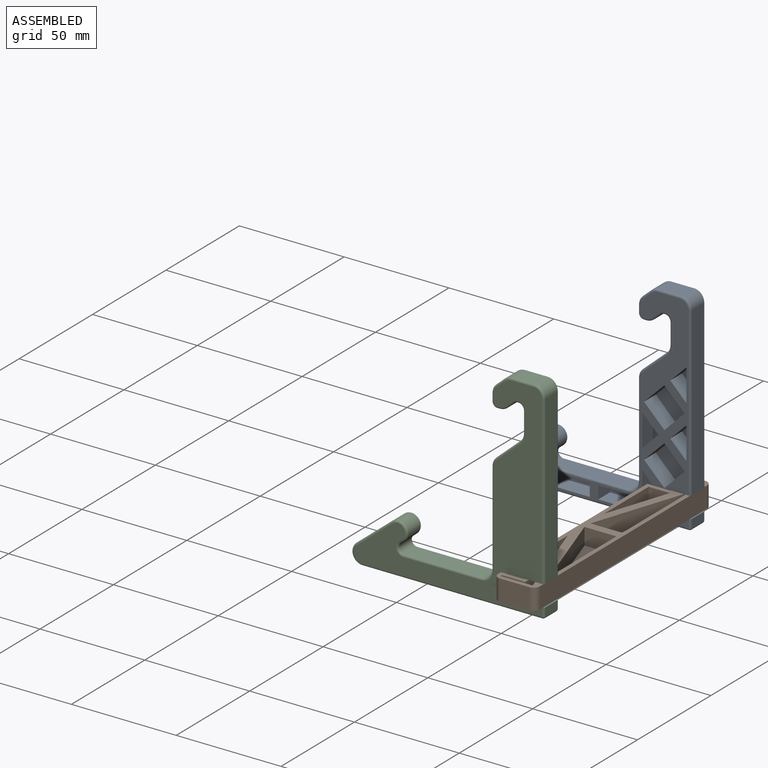
[diagram: assembled view]
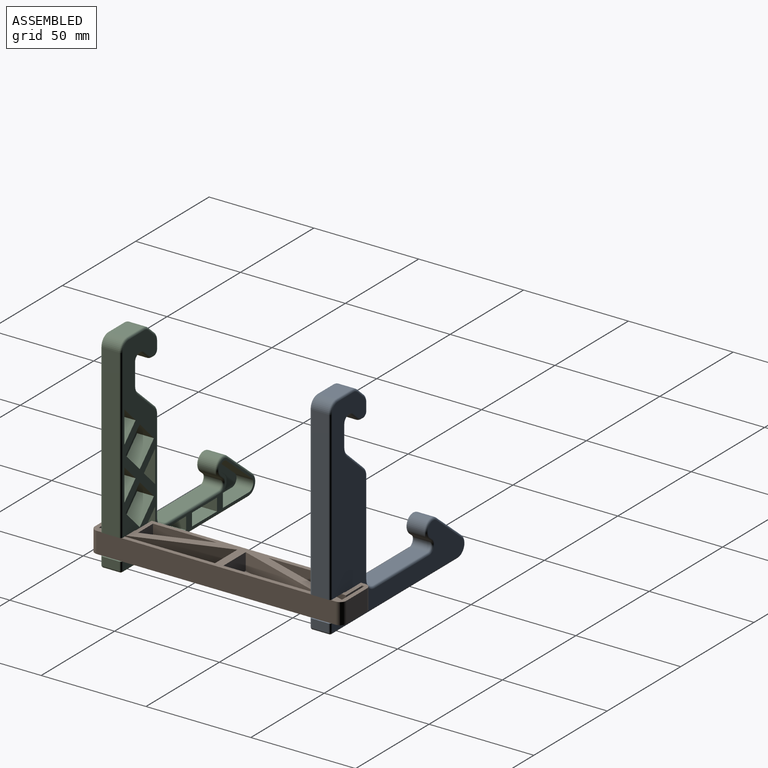
[diagram: assembled view, second angle]
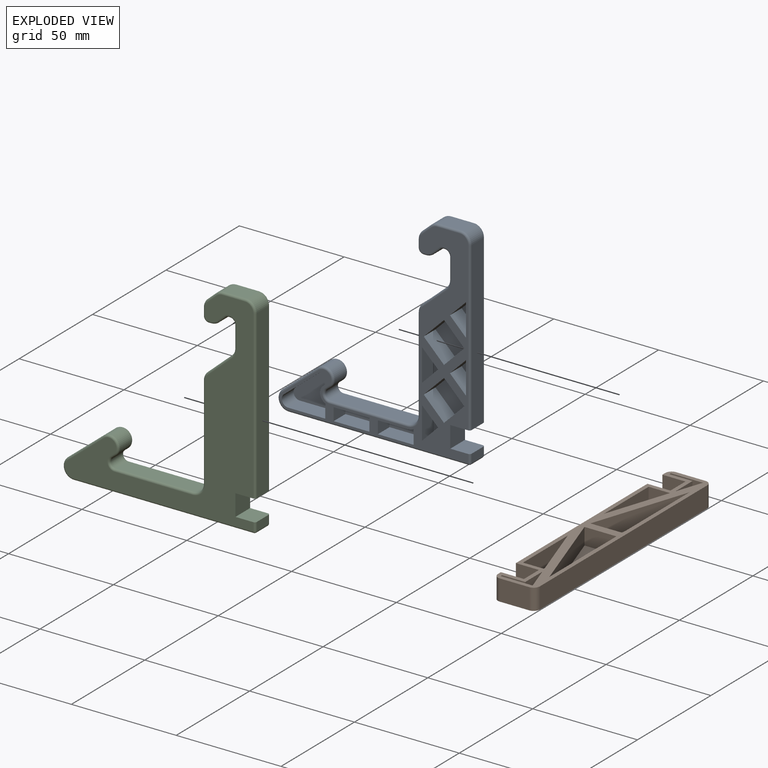
[diagram: exploded view]
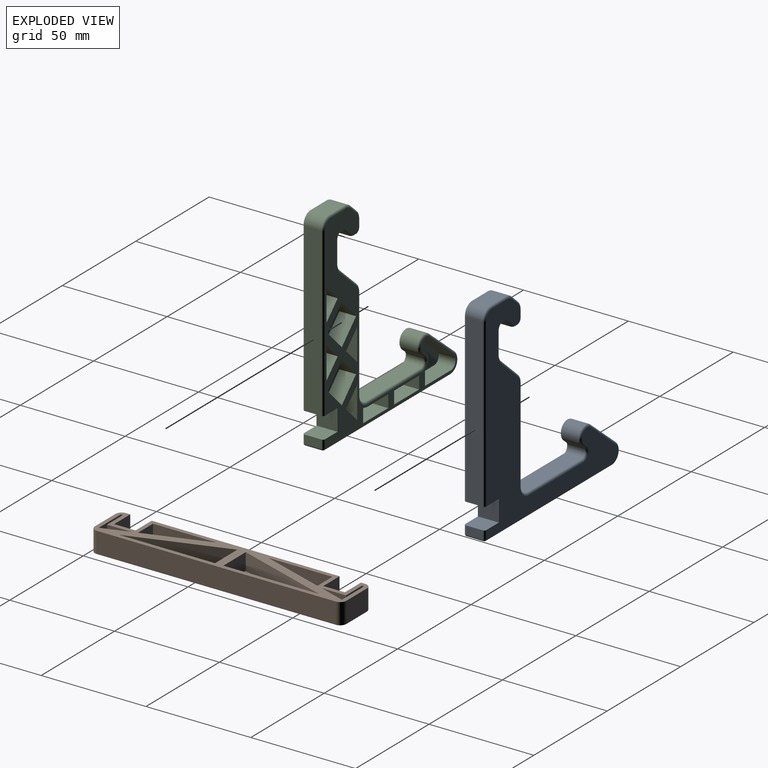
[diagram: exploded view, second angle]
ASSEMBLY  parts=3 mates=2
PART A: 137 faces, bbox 92.7x100.8x10 mm
  f0: plane 98x89.85mm, normal (0,0,1), area 1459.9mm2, adj f8,f9,f10,f11,f12,f13,f14,f17
  f1: cylinder r=2.5mm len=8mm, axis (0,0,-1), area 49.1mm2, adj f6,f56,f116,f125
  f2: plane 85.85x8mm, normal (0,-1,0), area 686.8mm2, adj f3,f126,f131,f136
  f3: cylinder r=5mm len=8.87mm, axis (0,0,-1), area 98.2mm2, adj f2,f4,f124,f135
  f4: plane 17.21x14.1mm, normal (-0.63,0.77,0), area 178mm2, adj f3,f5,f122,f133
  f5: cylinder r=4.6mm len=8.16mm, axis (0,0,-1), area 115.6mm2, adj f4,f6,f120,f130
  f6: plane 8x1.73mm, normal (0.63,-0.77,0), area 17.9mm2, adj f1,f5,f118,f128
  f7: plane 98x89.85mm, normal (0,0,-1), area 2531.2mm2, adj f17,f18,f19,f83,f85,f87,f89,f91
  f8: cylinder r=4.5mm len=8mm, axis (0,0,-1), area 71.8mm2, adj f0,f9,f14,f15
  f9: plane 8x6.47mm, normal (-1,0,0), area 51.8mm2, adj f0,f8,f10,f15
  f10: plane 17.73x8mm, normal (0,1,0), area 141.8mm2, adj f0,f9,f11,f15
  f11: cylinder r=3mm len=8mm, axis (0,0,-1), area 58.9mm2, adj f0,f10,f12,f15
  f12: plane 17.21x14.1mm, normal (0.63,-0.77,0), area 178mm2, adj f0,f11,f13,f15
  f13: cylinder r=2.6mm len=8mm, axis (0,0,-1), area 65.3mm2, adj f0,f12,f14,f15
  f14: plane 8x1.73mm, normal (-0.63,0.77,0), area 17.9mm2, adj f0,f8,f13,f15
  f15: plane 22.56x20.01mm, normal (0,0,1), area 256.3mm2, adj f8,f9,f10,f11,f12,f13,f14
  f16: plane 79.8x8mm, normal (1,0,0), area 638.4mm2, adj f17,f46,f78,f83
  f17: plane 10x9.5mm, normal (0,-1,0), area 94.6mm2, adj f0,f7,f16,f18,f78,f83
  f18: plane 10.2x10mm, normal (1,0,0), area 102mm2, adj f0,f7,f17,f19
  f19: plane 10x9.5mm, normal (0,1,0), area 94.6mm2, adj f0,f7,f18,f20,f127,f132
  f20: plane 8x4mm, normal (1,0,0), area 32mm2, adj f19,f127,f131,f132
  f21: plane 44.68x8mm, normal (-1,0,0), area 357.4mm2, adj f30,f62,f110,f119
  f22: plane 8x7.67mm, normal (-0.71,-0.71,0), area 86.8mm2, adj f0,f23,f24,f25
  f23: plane 8x7.67mm, normal (-0.71,0.71,0), area 86.8mm2, adj f0,f22,f24,f25
  f24: plane 15.34x8mm, normal (1,0,0), area 122.7mm2, adj f0,f22,f23,f25
  f25: plane 15.34x7.67mm, normal (0,0,1), area 58.9mm2, adj f22,f23,f24
  f26: plane 8x7.67mm, normal (0.71,-0.71,0), area 86.8mm2, adj f0,f27,f28,f29
  f27: plane 15.34x8mm, normal (-1,0,0), area 122.7mm2, adj f0,f26,f28,f29
  f28: plane 8x7.67mm, normal (0.71,0.71,0), area 86.8mm2, adj f0,f26,f27,f29
  f29: plane 15.34x7.67mm, normal (0,0,1), area 58.9mm2, adj f26,f27,f28
  f30: cylinder r=5mm len=8mm, axis (0,0,-1), area 33.8mm2, adj f21,f31,f108,f117
  f31: plane 11.64x10.35mm, normal (-0.66,0.75,0), area 124.6mm2, adj f30,f32,f106,f115
  f32: cylinder r=5mm len=8mm, axis (0,0,-1), area 33.8mm2, adj f31,f33,f104,f113
  f33: plane 10x8mm, normal (-1,0,0), area 80mm2, adj f32,f34,f102,f111
  f34: cylinder r=2.5mm len=8mm, axis (0,0,-1), area 31.4mm2, adj f33,f35,f100,f109
  f35: plane 8x0.35mm, normal (0,-1,0), area 2.8mm2, adj f34,f36,f98,f107
  f36: cylinder r=2.5mm len=8mm, axis (0,0,-1), area 14.5mm2, adj f35,f37,f96,f105
  f37: plane 8x3.49mm, normal (0.66,-0.75,0), area 37.4mm2, adj f36,f38,f94,f103
  f38: cylinder r=5mm len=8mm, axis (0,0,-1), area 29.1mm2, adj f37,f39,f92,f101
  f39: plane 8x1.17mm, normal (0,-1,0), area 9.4mm2, adj f38,f40,f90,f99
  f40: cylinder r=2.5mm len=8mm, axis (0,0,-1), area 31.4mm2, adj f39,f41,f88,f97
  f41: plane 8x3.68mm, normal (-1,0,0), area 29.4mm2, adj f40,f42,f86,f95
  f42: cylinder r=5mm len=8mm, axis (0,0,-1), area 33.8mm2, adj f41,f43,f84,f93
  f43: plane 8x4.3mm, normal (-0.66,0.75,0), area 46mm2, adj f42,f44,f82,f91
  f44: cylinder r=5mm len=8mm, axis (0,0,-1), area 29.1mm2, adj f43,f45,f81,f89
  f45: plane 10.7x8mm, normal (0,1,0), area 85.6mm2, adj f44,f46,f80,f87
  f46: cylinder r=5mm len=8mm, axis (0,0,-1), area 62.8mm2, adj f16,f45,f79,f85
  f47: plane 15.34x8mm, normal (-1,0,0), area 122.7mm2, adj f0,f48,f49,f50
  f48: plane 8x7.67mm, normal (0.71,0.71,0), area 86.8mm2, adj f0,f47,f49,f50
  f49: plane 8x7.67mm, normal (0.71,-0.71,0), area 86.8mm2, adj f0,f47,f48,f50
  f50: plane 15.34x7.67mm, normal (0,0,1), area 58.9mm2, adj f47,f48,f49
  f51: plane 9.67x9.67mm, normal (-0.71,-0.71,0), area 109.4mm2, adj f0,f52,f54,f55
  f52: plane 9.67x9.67mm, normal (-0.71,0.71,0), area 109.4mm2, adj f0,f51,f53,f55
  f53: plane 9.67x9.67mm, normal (0.71,0.71,0), area 109.4mm2, adj f0,f52,f54,f55
  f54: plane 9.67x9.67mm, normal (0.71,-0.71,0), area 109.4mm2, adj f0,f51,f53,f55
  f55: plane 19.34x19.34mm, normal (0,0,1), area 187.1mm2, adj f51,f52,f53,f54
  f56: plane 37.12x8mm, normal (0,1,0), area 297mm2, adj f1,f62,f114,f123
  f57: plane 17.06x8mm, normal (0,1,0), area 136.5mm2, adj f0,f58,f60,f61
  f58: plane 8x6mm, normal (1,0,0), area 48mm2, adj f0,f57,f59,f61
  f59: plane 17.06x8mm, normal (0,-1,0), area 136.5mm2, adj f0,f58,f60,f61
  f60: plane 8x6mm, normal (-1,0,0), area 48mm2, adj f0,f57,f59,f61
  f61: plane 17.06x6mm, normal (0,0,1), area 102.4mm2, adj f57,f58,f59,f60
  f62: cylinder r=5mm len=8mm, axis (0,0,-1), area 62.8mm2, adj f21,f56,f112,f121
  f63: plane 17.06x8mm, normal (0,1,0), area 136.5mm2, adj f0,f64,f67,f68
  f64: plane 8x6mm, normal (1,0,0), area 48mm2, adj f0,f63,f65,f68
  f65: plane 14.06x8mm, normal (0,-1,0), area 112.5mm2, adj f0,f64,f66,f68
  f66: cylinder r=7mm len=8mm, axis (0,0,-1), area 24.8mm2, adj f0,f65,f67,f68
  f67: plane 8x6.68mm, normal (-1,0,0), area 53.4mm2, adj f0,f63,f66,f68
  f68: plane 17.06x6.68mm, normal (0,0,1), area 103mm2, adj f63,f64,f65,f66,f67
  f69: plane 9.67x9.67mm, normal (0.71,-0.71,0), area 109.4mm2, adj f0,f70,f72,f73
  f70: plane 9.67x9.67mm, normal (-0.71,-0.71,0), area 109.4mm2, adj f0,f69,f71,f73
  f71: plane 9.67x9.67mm, normal (-0.71,0.71,0), area 109.4mm2, adj f0,f70,f72,f73
  f72: plane 9.67x9.67mm, normal (0.71,0.71,0), area 109.4mm2, adj f0,f69,f71,f73
  f73: plane 19.34x19.34mm, normal (0,0,1), area 187.1mm2, adj f69,f70,f71,f72
  f74: plane 8x7.67mm, normal (-0.71,-0.71,0), area 86.8mm2, adj f0,f75,f76,f77
  f75: plane 8x7.67mm, normal (-0.71,0.71,0), area 86.8mm2, adj f0,f74,f76,f77
  f76: plane 15.34x8mm, normal (1,0,0), area 122.7mm2, adj f0,f74,f75,f77
  f77: plane 15.34x7.67mm, normal (0,0,1), area 58.9mm2, adj f74,f75,f76
  f78: cylinder r=1mm len=79.8mm, axis (0,1,0), area 125.3mm2, adj f0,f16,f17,f79
  f79: torus R=4mm, axis (0,0,1), area 11.4mm2, adj f0,f46,f78,f80
  f80: cylinder r=1mm len=10.7mm, axis (-1,0,0), area 16.8mm2, adj f0,f45,f79,f81
  f81: torus R=4mm, axis (0,0,1), area 5.3mm2, adj f0,f44,f80,f82
  f82: cylinder r=1mm len=4.96mm, axis (-0.75,-0.66,0), area 9mm2, adj f0,f43,f81,f84
  f83: cylinder r=1mm len=79.8mm, axis (0,-1,0), area 125.3mm2, adj f7,f16,f17,f85
  f84: torus R=4mm, axis (0,0,1), area 6.1mm2, adj f0,f42,f82,f86
  f85: torus R=4mm, axis (0,0,1), area 11.4mm2, adj f7,f46,f83,f87
  f86: cylinder r=1mm len=3.68mm, axis (0,-1,0), area 5.8mm2, adj f0,f41,f84,f88
  f87: cylinder r=1mm len=10.7mm, axis (1,0,0), area 16.8mm2, adj f7,f45,f85,f89
  f88: torus R=1.5mm, axis (0,0,1), area 5.3mm2, adj f0,f40,f86,f90
  f89: torus R=4mm, axis (0,0,1), area 5.3mm2, adj f7,f44,f87,f91
  f90: cylinder r=1mm len=1.17mm, axis (1,0,0), area 1.8mm2, adj f0,f39,f88,f92
  f91: cylinder r=1mm len=4.96mm, axis (0.75,0.66,0), area 9mm2, adj f7,f43,f89,f93
  f92: torus R=4mm, axis (0,0,1), area 5.3mm2, adj f0,f38,f90,f94
  f93: torus R=4mm, axis (0,0,1), area 6.1mm2, adj f7,f42,f91,f95
  f94: cylinder r=1mm len=4.16mm, axis (0.75,0.66,0), area 7.3mm2, adj f0,f37,f92,f96
  f95: cylinder r=1mm len=3.68mm, axis (0,1,0), area 5.8mm2, adj f7,f41,f93,f97
  f96: torus R=3.5mm, axis (0,0,1), area 3.3mm2, adj f0,f36,f94,f98
  f97: torus R=1.5mm, axis (0,0,1), area 5.3mm2, adj f7,f40,f95,f99
  f98: cylinder r=1mm len=1mm, axis (1,0,0), area 0.6mm2, adj f0,f35,f96,f100
  f99: cylinder r=1mm len=1.17mm, axis (-1,0,0), area 1.8mm2, adj f7,f39,f97,f101
  f100: torus R=3.5mm, axis (0,0,1), area 7.1mm2, adj f0,f34,f98,f102
  f101: torus R=4mm, axis (0,0,1), area 5.3mm2, adj f7,f38,f99,f103
  f102: cylinder r=1mm len=10mm, axis (0,-1,0), area 15.7mm2, adj f0,f33,f100,f104
  f103: cylinder r=1mm len=4.16mm, axis (-0.75,-0.66,0), area 7.3mm2, adj f7,f37,f101,f105
  f104: torus R=6mm, axis (0,0,1), area 7.1mm2, adj f0,f32,f102,f106
  f105: torus R=3.5mm, axis (0,0,1), area 3.3mm2, adj f7,f36,f103,f107
  f106: cylinder r=1mm len=12.31mm, axis (-0.75,-0.66,0), area 24.5mm2, adj f0,f31,f104,f108
  f107: cylinder r=1mm len=1mm, axis (-1,0,0), area 0.6mm2, adj f7,f35,f105,f109
  f108: torus R=4mm, axis (0,0,1), area 6.1mm2, adj f0,f30,f106,f110
  f109: torus R=3.5mm, axis (0,0,1), area 7.1mm2, adj f7,f34,f107,f111
  f110: cylinder r=1mm len=44.68mm, axis (0,-1,0), area 70.2mm2, adj f0,f21,f108,f112
  f111: cylinder r=1mm len=10mm, axis (0,1,0), area 15.7mm2, adj f7,f33,f109,f113
  f112: torus R=6mm, axis (0,0,1), area 13.2mm2, adj f0,f62,f110,f114
  f113: torus R=6mm, axis (0,0,1), area 7.1mm2, adj f7,f32,f111,f115
  f114: cylinder r=1mm len=37.12mm, axis (-1,0,0), area 58.3mm2, adj f0,f56,f112,f116
  f115: cylinder r=1mm len=12.31mm, axis (0.75,0.66,0), area 24.5mm2, adj f7,f31,f113,f117
  f116: torus R=3.5mm, axis (0,0,1), area 11mm2, adj f0,f1,f114,f118
  f117: torus R=4mm, axis (0,0,1), area 6.1mm2, adj f7,f30,f115,f119
  f118: cylinder r=1mm len=2.36mm, axis (0.77,0.63,0), area 3.5mm2, adj f0,f6,f116,f120
  f119: cylinder r=1mm len=44.68mm, axis (0,1,0), area 70.2mm2, adj f7,f21,f117,f121
  f120: torus R=3.6mm, axis (0,0,1), area 20.9mm2, adj f0,f5,f118,f122
  f121: torus R=6mm, axis (0,0,1), area 13.2mm2, adj f7,f62,f119,f123
  f122: cylinder r=1mm len=17.85mm, axis (-0.77,-0.63,0), area 34.9mm2, adj f0,f4,f120,f124
  f123: cylinder r=1mm len=37.12mm, axis (1,0,0), area 58.3mm2, adj f7,f56,f121,f125
  f124: torus R=4mm, axis (0,0,1), area 17.9mm2, adj f0,f3,f122,f126
  f125: torus R=3.5mm, axis (0,0,1), area 11mm2, adj f1,f7,f123,f128
  f126: cylinder r=1mm len=85.85mm, axis (1,0,0), area 134.9mm2, adj f0,f2,f124,f129
  f127: cylinder r=1mm len=4mm, axis (0,1,0), area 6.3mm2, adj f0,f19,f20,f129
  f128: cylinder r=1mm len=2.36mm, axis (-0.77,-0.63,0), area 3.5mm2, adj f6,f7,f125,f130
  f129: sphere r=1mm, area 1.6mm2, adj f126,f127,f131
  f130: torus R=3.6mm, axis (0,0,1), area 20.9mm2, adj f5,f7,f128,f133
  f131: cylinder r=1mm len=8mm, axis (0,0,1), area 12.6mm2, adj f2,f20,f129,f134
  f132: cylinder r=1mm len=4mm, axis (0,-1,0), area 6.3mm2, adj f7,f19,f20,f134
  f133: cylinder r=1mm len=17.85mm, axis (0.77,0.63,0), area 34.9mm2, adj f4,f7,f130,f135
  f134: sphere r=1mm, area 1.6mm2, adj f131,f132,f136
  f135: torus R=4mm, axis (0,0,1), area 17.9mm2, adj f3,f7,f133,f136
  f136: cylinder r=1mm len=85.85mm, axis (-1,0,0), area 134.9mm2, adj f2,f7,f134,f135
PART B: 46 faces, bbox 20x120x10 mm
  f0: plane 120x20mm, normal (0,0,1), area 1087.3mm2, adj f1,f3,f4,f5,f7,f8,f9,f10
  f1: plane 114x10mm, normal (1,0,0), area 1140mm2, adj f0,f2,f44,f45
  f2: plane 120x20mm, normal (0,0,-1), area 2167.9mm2, adj f1,f7,f8,f9,f10,f11,f12,f27
  f3: plane 45.68x15.23mm, normal (0.95,-0.32,0), area 385.2mm2, adj f0,f4,f5,f6
  f4: plane 15.23x8mm, normal (0,1,0), area 121.8mm2, adj f0,f3,f5,f6
  f5: plane 45.68x8mm, normal (-1,0,0), area 365.4mm2, adj f0,f3,f4,f6
  f6: plane 45.68x15.23mm, normal (0,0,1), area 347.7mm2, adj f3,f4,f5
  f7: plane 89.6x10mm, normal (-1,0,0), area 896mm2, adj f0,f2,f8,f31
  f8: plane 11x10mm, normal (0,-1,0), area 110mm2, adj f0,f2,f7,f9
  f9: plane 10.2x10mm, normal (-1,0,0), area 102mm2, adj f0,f2,f8,f10
  f10: plane 11x10mm, normal (0,1,0), area 110mm2, adj f0,f2,f9,f11
  f11: plane 10x2mm, normal (-1,0,0), area 20mm2, adj f0,f2,f10,f43
  f12: plane 14x10mm, normal (0,-1,0), area 140mm2, adj f0,f2,f43,f44
  f13: plane 30.48x8mm, normal (1,0,0), area 243.8mm2, adj f0,f14,f15,f16
  f14: plane 10.16x8mm, normal (0,1,0), area 81.3mm2, adj f0,f13,f15,f16
  f15: plane 30.48x10.16mm, normal (-0.95,-0.32,0), area 257mm2, adj f0,f13,f14,f16
  f16: plane 30.48x10.16mm, normal (0,0,1), area 154.8mm2, adj f13,f14,f15
  f17: plane 15.23x8mm, normal (0,1,0), area 121.8mm2, adj f0,f18,f21,f22
  f18: plane 8x1mm, normal (1,0,0), area 8mm2, adj f0,f17,f19,f21
  f19: plane 11x8mm, normal (0,-1,0), area 88mm2, adj f0,f18,f20,f21
  f20: plane 11.68x8mm, normal (1,0,0), area 93.4mm2, adj f0,f19,f21,f22
  f21: plane 15.23x12.68mm, normal (0,0,1), area 37.8mm2, adj f17,f18,f19,f20,f22
  f22: plane 12.68x8mm, normal (-0.95,-0.32,0), area 106.9mm2, adj f0,f17,f20,f21
  f23: plane 45.68x8mm, normal (-1,0,0), area 365.4mm2, adj f0,f24,f25,f26
  f24: plane 15.23x8mm, normal (0,-1,0), area 121.8mm2, adj f0,f23,f25,f26
  f25: plane 45.68x15.23mm, normal (0.95,0.32,0), area 385.2mm2, adj f0,f23,f24,f26
  f26: plane 45.68x15.23mm, normal (0,0,1), area 347.7mm2, adj f23,f24,f25
  f27: plane 14x10mm, normal (0,1,0), area 140mm2, adj f0,f2,f42,f45
  f28: plane 10x2mm, normal (-1,0,0), area 20mm2, adj f0,f2,f29,f42
  f29: plane 11x10mm, normal (0,-1,0), area 110mm2, adj f0,f2,f28,f30
  f30: plane 10.2x10mm, normal (-1,0,0), area 102mm2, adj f0,f2,f29,f31
  f31: plane 11x10mm, normal (0,1,0), area 110mm2, adj f0,f2,f7,f30
  f32: plane 12.68x8mm, normal (-0.95,0.32,0), area 106.9mm2, adj f0,f33,f36,f37
  f33: plane 15.23x8mm, normal (0,-1,0), area 121.8mm2, adj f0,f32,f34,f37
  f34: plane 8x1mm, normal (1,0,0), area 8mm2, adj f0,f33,f35,f37
  f35: plane 11x8mm, normal (0,1,0), area 88mm2, adj f0,f34,f36,f37
  f36: plane 11.68x8mm, normal (1,0,0), area 93.4mm2, adj f0,f32,f35,f37
  f37: plane 15.23x12.68mm, normal (0,0,1), area 37.8mm2, adj f32,f33,f34,f35,f36
  f38: plane 10.16x8mm, normal (0,-1,0), area 81.3mm2, adj f0,f39,f40,f41
  f39: plane 30.48x8mm, normal (1,0,0), area 243.8mm2, adj f0,f38,f40,f41
  f40: plane 30.48x10.16mm, normal (0,0,1), area 154.8mm2, adj f38,f39,f41
  f41: plane 30.48x10.16mm, normal (-0.95,0.32,0), area 257mm2, adj f0,f38,f39,f40
  f42: cylinder r=3mm len=10mm, axis (0,0,-1), area 47.1mm2, adj f0,f2,f27,f28
  f43: cylinder r=3mm len=10mm, axis (0,0,-1), area 47.1mm2, adj f0,f2,f11,f12
  f44: cylinder r=3mm len=10mm, axis (0,0,-1), area 47.1mm2, adj f0,f1,f2,f12
  f45: cylinder r=3mm len=10mm, axis (0,0,-1), area 47.1mm2, adj f0,f1,f2,f27
PART C: 137 faces, bbox 92.7x100.8x10 mm
  f0: plane 98x89.85mm, normal (0,0,1), area 1459.9mm2, adj f8,f9,f10,f11,f12,f13,f14,f17
  f1: cylinder r=2.5mm len=8mm, axis (0,0,-1), area 49.1mm2, adj f6,f56,f99,f115
  f2: plane 85.85x8mm, normal (0,1,0), area 686.8mm2, adj f3,f105,f108,f110
  f3: cylinder r=5mm len=8.87mm, axis (0,0,-1), area 98.2mm2, adj f2,f4,f103,f111
  f4: plane 17.21x14.1mm, normal (-0.63,-0.77,0), area 178mm2, adj f3,f5,f102,f112
  f5: cylinder r=4.6mm len=8.16mm, axis (0,0,-1), area 115.6mm2, adj f4,f6,f101,f113
  f6: plane 8x1.73mm, normal (0.63,0.77,0), area 17.9mm2, adj f1,f5,f100,f114
  f7: plane 98x89.85mm, normal (0,0,-1), area 2531.2mm2, adj f17,f18,f19,f107,f110,f111,f112,f113
  f8: cylinder r=4.5mm len=8mm, axis (0,0,-1), area 71.8mm2, adj f0,f9,f14,f15
  f9: plane 8x6.47mm, normal (-1,0,0), area 51.8mm2, adj f0,f8,f10,f15
  f10: plane 17.73x8mm, normal (0,-1,0), area 141.8mm2, adj f0,f9,f11,f15
  f11: cylinder r=3mm len=8mm, axis (0,0,-1), area 58.9mm2, adj f0,f10,f12,f15
  f12: plane 17.21x14.1mm, normal (0.63,0.77,0), area 178mm2, adj f0,f11,f13,f15
  f13: cylinder r=2.6mm len=8mm, axis (0,0,-1), area 65.3mm2, adj f0,f12,f14,f15
  f14: plane 8x1.73mm, normal (-0.63,-0.77,0), area 17.9mm2, adj f0,f8,f13,f15
  f15: plane 22.56x20.01mm, normal (0,0,1), area 256.3mm2, adj f8,f9,f10,f11,f12,f13,f14
  f16: plane 79.8x8mm, normal (1,0,0), area 638.4mm2, adj f17,f46,f78,f136
  f17: plane 10x9.5mm, normal (0,1,0), area 94.6mm2, adj f0,f7,f16,f18,f78,f136
  f18: plane 10.2x10mm, normal (1,0,0), area 102mm2, adj f0,f7,f17,f19
  f19: plane 10x9.5mm, normal (0,-1,0), area 94.6mm2, adj f0,f7,f18,f20,f104,f107
  f20: plane 8x4mm, normal (1,0,0), area 32mm2, adj f19,f104,f107,f108
  f21: plane 44.68x8mm, normal (-1,0,0), area 357.4mm2, adj f30,f62,f96,f118
  f22: plane 8x7.67mm, normal (-0.71,0.71,0), area 86.8mm2, adj f0,f23,f24,f25
  f23: plane 8x7.67mm, normal (-0.71,-0.71,0), area 86.8mm2, adj f0,f22,f24,f25
  f24: plane 15.34x8mm, normal (1,0,0), area 122.7mm2, adj f0,f22,f23,f25
  f25: plane 15.34x7.67mm, normal (0,0,1), area 58.9mm2, adj f22,f23,f24
  f26: plane 8x7.67mm, normal (0.71,0.71,0), area 86.8mm2, adj f0,f27,f28,f29
  f27: plane 15.34x8mm, normal (-1,0,0), area 122.7mm2, adj f0,f26,f28,f29
  f28: plane 8x7.67mm, normal (0.71,-0.71,0), area 86.8mm2, adj f0,f26,f27,f29
  f29: plane 15.34x7.67mm, normal (0,0,1), area 58.9mm2, adj f26,f27,f28
  f30: cylinder r=5mm len=8mm, axis (0,0,-1), area 33.8mm2, adj f21,f31,f95,f119
  f31: plane 11.64x10.35mm, normal (-0.66,-0.75,0), area 124.6mm2, adj f30,f32,f94,f120
  f32: cylinder r=5mm len=8mm, axis (0,0,-1), area 33.8mm2, adj f31,f33,f93,f121
  f33: plane 10x8mm, normal (-1,0,0), area 80mm2, adj f32,f34,f92,f122
  f34: cylinder r=2.5mm len=8mm, axis (0,0,-1), area 31.4mm2, adj f33,f35,f91,f123
  f35: plane 8x0.35mm, normal (0,1,0), area 2.8mm2, adj f34,f36,f90,f124
  f36: cylinder r=2.5mm len=8mm, axis (0,0,-1), area 14.5mm2, adj f35,f37,f89,f125
  f37: plane 8x3.49mm, normal (0.66,0.75,0), area 37.4mm2, adj f36,f38,f88,f126
  f38: cylinder r=5mm len=8mm, axis (0,0,-1), area 29.1mm2, adj f37,f39,f87,f127
  f39: plane 8x1.17mm, normal (0,1,0), area 9.4mm2, adj f38,f40,f86,f128
  f40: cylinder r=2.5mm len=8mm, axis (0,0,-1), area 31.4mm2, adj f39,f41,f85,f129
  f41: plane 8x3.68mm, normal (-1,0,0), area 29.4mm2, adj f40,f42,f84,f130
  f42: cylinder r=5mm len=8mm, axis (0,0,-1), area 33.8mm2, adj f41,f43,f83,f131
  f43: plane 8x4.3mm, normal (-0.66,-0.75,0), area 46mm2, adj f42,f44,f82,f132
  f44: cylinder r=5mm len=8mm, axis (0,0,-1), area 29.1mm2, adj f43,f45,f81,f133
  f45: plane 10.7x8mm, normal (0,-1,0), area 85.6mm2, adj f44,f46,f80,f134
  f46: cylinder r=5mm len=8mm, axis (0,0,-1), area 62.8mm2, adj f16,f45,f79,f135
  f47: plane 15.34x8mm, normal (-1,0,0), area 122.7mm2, adj f0,f48,f49,f50
  f48: plane 8x7.67mm, normal (0.71,-0.71,0), area 86.8mm2, adj f0,f47,f49,f50
  f49: plane 8x7.67mm, normal (0.71,0.71,0), area 86.8mm2, adj f0,f47,f48,f50
  f50: plane 15.34x7.67mm, normal (0,0,1), area 58.9mm2, adj f47,f48,f49
  f51: plane 9.67x9.67mm, normal (-0.71,0.71,0), area 109.4mm2, adj f0,f52,f54,f55
  f52: plane 9.67x9.67mm, normal (-0.71,-0.71,0), area 109.4mm2, adj f0,f51,f53,f55
  f53: plane 9.67x9.67mm, normal (0.71,-0.71,0), area 109.4mm2, adj f0,f52,f54,f55
  f54: plane 9.67x9.67mm, normal (0.71,0.71,0), area 109.4mm2, adj f0,f51,f53,f55
  f55: plane 19.34x19.34mm, normal (0,0,1), area 187.1mm2, adj f51,f52,f53,f54
  f56: plane 37.12x8mm, normal (0,-1,0), area 297mm2, adj f1,f62,f98,f116
  f57: plane 17.06x8mm, normal (0,-1,0), area 136.5mm2, adj f0,f58,f60,f61
  f58: plane 8x6mm, normal (1,0,0), area 48mm2, adj f0,f57,f59,f61
  f59: plane 17.06x8mm, normal (0,1,0), area 136.5mm2, adj f0,f58,f60,f61
  f60: plane 8x6mm, normal (-1,0,0), area 48mm2, adj f0,f57,f59,f61
  f61: plane 17.06x6mm, normal (0,0,1), area 102.4mm2, adj f57,f58,f59,f60
  f62: cylinder r=5mm len=8mm, axis (0,0,-1), area 62.8mm2, adj f21,f56,f97,f117
  f63: plane 17.06x8mm, normal (0,-1,0), area 136.5mm2, adj f0,f64,f67,f68
  f64: plane 8x6mm, normal (1,0,0), area 48mm2, adj f0,f63,f65,f68
  f65: plane 14.06x8mm, normal (0,1,0), area 112.5mm2, adj f0,f64,f66,f68
  f66: cylinder r=7mm len=8mm, axis (0,0,-1), area 24.8mm2, adj f0,f65,f67,f68
  f67: plane 8x6.68mm, normal (-1,0,0), area 53.4mm2, adj f0,f63,f66,f68
  f68: plane 17.06x6.68mm, normal (0,0,1), area 103mm2, adj f63,f64,f65,f66,f67
  f69: plane 9.67x9.67mm, normal (0.71,0.71,0), area 109.4mm2, adj f0,f70,f72,f73
  f70: plane 9.67x9.67mm, normal (-0.71,0.71,0), area 109.4mm2, adj f0,f69,f71,f73
  f71: plane 9.67x9.67mm, normal (-0.71,-0.71,0), area 109.4mm2, adj f0,f70,f72,f73
  f72: plane 9.67x9.67mm, normal (0.71,-0.71,0), area 109.4mm2, adj f0,f69,f71,f73
  f73: plane 19.34x19.34mm, normal (0,0,1), area 187.1mm2, adj f69,f70,f71,f72
  f74: plane 8x7.67mm, normal (-0.71,0.71,0), area 86.8mm2, adj f0,f75,f76,f77
  f75: plane 8x7.67mm, normal (-0.71,-0.71,0), area 86.8mm2, adj f0,f74,f76,f77
  f76: plane 15.34x8mm, normal (1,0,0), area 122.7mm2, adj f0,f74,f75,f77
  f77: plane 15.34x7.67mm, normal (0,0,1), area 58.9mm2, adj f74,f75,f76
  f78: cylinder r=1mm len=79.8mm, axis (0,-1,0), area 125.3mm2, adj f0,f16,f17,f79
  f79: torus R=4mm, axis (0,0,1), area 11.4mm2, adj f0,f46,f78,f80
  f80: cylinder r=1mm len=10.7mm, axis (-1,0,0), area 16.8mm2, adj f0,f45,f79,f81
  f81: torus R=4mm, axis (0,0,1), area 5.3mm2, adj f0,f44,f80,f82
  f82: cylinder r=1mm len=4.96mm, axis (-0.75,0.66,0), area 9mm2, adj f0,f43,f81,f83
  f83: torus R=4mm, axis (0,0,1), area 6.1mm2, adj f0,f42,f82,f84
  f84: cylinder r=1mm len=3.68mm, axis (0,1,0), area 5.8mm2, adj f0,f41,f83,f85
  f85: torus R=1.5mm, axis (0,0,1), area 5.3mm2, adj f0,f40,f84,f86
  f86: cylinder r=1mm len=1.17mm, axis (1,0,0), area 1.8mm2, adj f0,f39,f85,f87
  f87: torus R=4mm, axis (0,0,1), area 5.3mm2, adj f0,f38,f86,f88
  f88: cylinder r=1mm len=4.16mm, axis (0.75,-0.66,0), area 7.3mm2, adj f0,f37,f87,f89
  f89: torus R=3.5mm, axis (0,0,1), area 3.3mm2, adj f0,f36,f88,f90
  f90: cylinder r=1mm len=1mm, axis (1,0,0), area 0.6mm2, adj f0,f35,f89,f91
  f91: torus R=3.5mm, axis (0,0,1), area 7.1mm2, adj f0,f34,f90,f92
  f92: cylinder r=1mm len=10mm, axis (0,1,0), area 15.7mm2, adj f0,f33,f91,f93
  f93: torus R=6mm, axis (0,0,1), area 7.1mm2, adj f0,f32,f92,f94
  f94: cylinder r=1mm len=12.31mm, axis (-0.75,0.66,0), area 24.5mm2, adj f0,f31,f93,f95
  f95: torus R=4mm, axis (0,0,1), area 6.1mm2, adj f0,f30,f94,f96
  f96: cylinder r=1mm len=44.68mm, axis (0,1,0), area 70.2mm2, adj f0,f21,f95,f97
  f97: torus R=6mm, axis (0,0,1), area 13.2mm2, adj f0,f62,f96,f98
  f98: cylinder r=1mm len=37.12mm, axis (-1,0,0), area 58.3mm2, adj f0,f56,f97,f99
  f99: torus R=3.5mm, axis (0,0,1), area 11mm2, adj f0,f1,f98,f100
  f100: cylinder r=1mm len=2.36mm, axis (0.77,-0.63,0), area 3.5mm2, adj f0,f6,f99,f101
  f101: torus R=3.6mm, axis (0,0,1), area 20.9mm2, adj f0,f5,f100,f102
  f102: cylinder r=1mm len=17.85mm, axis (-0.77,0.63,0), area 34.9mm2, adj f0,f4,f101,f103
  f103: torus R=4mm, axis (0,0,1), area 17.9mm2, adj f0,f3,f102,f105
  f104: cylinder r=1mm len=4mm, axis (0,-1,0), area 6.3mm2, adj f0,f19,f20,f106
  f105: cylinder r=1mm len=85.85mm, axis (1,0,0), area 134.9mm2, adj f0,f2,f103,f106
  f106: sphere r=1mm, area 1.6mm2, adj f104,f105,f108
  f107: cylinder r=1mm len=4mm, axis (0,1,0), area 6.3mm2, adj f7,f19,f20,f109
  f108: cylinder r=1mm len=8mm, axis (0,0,1), area 12.6mm2, adj f2,f20,f106,f109
  f109: sphere r=1mm, area 1.6mm2, adj f107,f108,f110
  f110: cylinder r=1mm len=85.85mm, axis (-1,0,0), area 134.9mm2, adj f2,f7,f109,f111
  f111: torus R=4mm, axis (0,0,1), area 17.9mm2, adj f3,f7,f110,f112
  f112: cylinder r=1mm len=17.85mm, axis (0.77,-0.63,0), area 34.9mm2, adj f4,f7,f111,f113
  f113: torus R=3.6mm, axis (0,0,1), area 20.9mm2, adj f5,f7,f112,f114
  f114: cylinder r=1mm len=2.36mm, axis (-0.77,0.63,0), area 3.5mm2, adj f6,f7,f113,f115
  f115: torus R=3.5mm, axis (0,0,1), area 11mm2, adj f1,f7,f114,f116
  f116: cylinder r=1mm len=37.12mm, axis (1,0,0), area 58.3mm2, adj f7,f56,f115,f117
  f117: torus R=6mm, axis (0,0,1), area 13.2mm2, adj f7,f62,f116,f118
  f118: cylinder r=1mm len=44.68mm, axis (0,-1,0), area 70.2mm2, adj f7,f21,f117,f119
  f119: torus R=4mm, axis (0,0,1), area 6.1mm2, adj f7,f30,f118,f120
  f120: cylinder r=1mm len=12.31mm, axis (0.75,-0.66,0), area 24.5mm2, adj f7,f31,f119,f121
  f121: torus R=6mm, axis (0,0,1), area 7.1mm2, adj f7,f32,f120,f122
  f122: cylinder r=1mm len=10mm, axis (0,-1,0), area 15.7mm2, adj f7,f33,f121,f123
  f123: torus R=3.5mm, axis (0,0,1), area 7.1mm2, adj f7,f34,f122,f124
  f124: cylinder r=1mm len=1mm, axis (-1,0,0), area 0.6mm2, adj f7,f35,f123,f125
  f125: torus R=3.5mm, axis (0,0,1), area 3.3mm2, adj f7,f36,f124,f126
  f126: cylinder r=1mm len=4.16mm, axis (-0.75,0.66,0), area 7.3mm2, adj f7,f37,f125,f127
  f127: torus R=4mm, axis (0,0,1), area 5.3mm2, adj f7,f38,f126,f128
  f128: cylinder r=1mm len=1.17mm, axis (-1,0,0), area 1.8mm2, adj f7,f39,f127,f129
  f129: torus R=1.5mm, axis (0,0,1), area 5.3mm2, adj f7,f40,f128,f130
  f130: cylinder r=1mm len=3.68mm, axis (0,-1,0), area 5.8mm2, adj f7,f41,f129,f131
  f131: torus R=4mm, axis (0,0,1), area 6.1mm2, adj f7,f42,f130,f132
  f132: cylinder r=1mm len=4.96mm, axis (0.75,-0.66,0), area 9mm2, adj f7,f43,f131,f133
  f133: torus R=4mm, axis (0,0,1), area 5.3mm2, adj f7,f44,f132,f134
  f134: cylinder r=1mm len=10.7mm, axis (1,0,0), area 16.8mm2, adj f7,f45,f133,f135
  f135: torus R=4mm, axis (0,0,1), area 11.4mm2, adj f7,f46,f134,f136
  f136: cylinder r=1mm len=79.8mm, axis (0,1,0), area 125.3mm2, adj f7,f16,f17,f135
PLACE A rot(axis=(1,0,0),90deg) t=(59.82,74.94,-25.1)mm
PLACE B at identity
PLACE C rot(axis=(-1,0,0),90deg) t=(59.82,-34.86,-5.1)mm
MATE fastened A.f18 <-> B.f30  axis (1,0,0) through (50.32,69.94,5)mm
MATE fastened C.f18 <-> B.f9  axis (1,0,0) through (50.32,-29.86,5)mm
